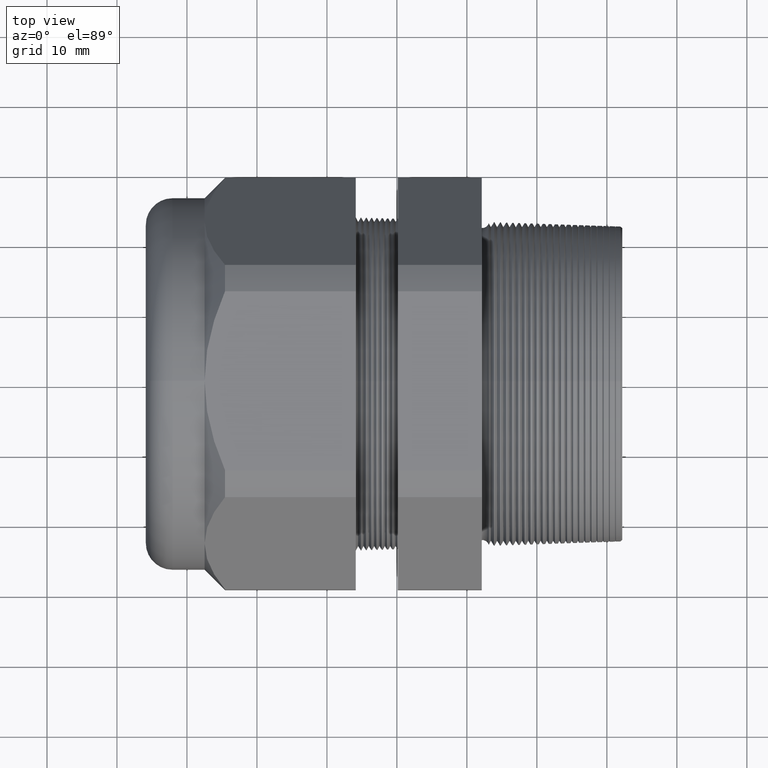
[diagram: clean part render]
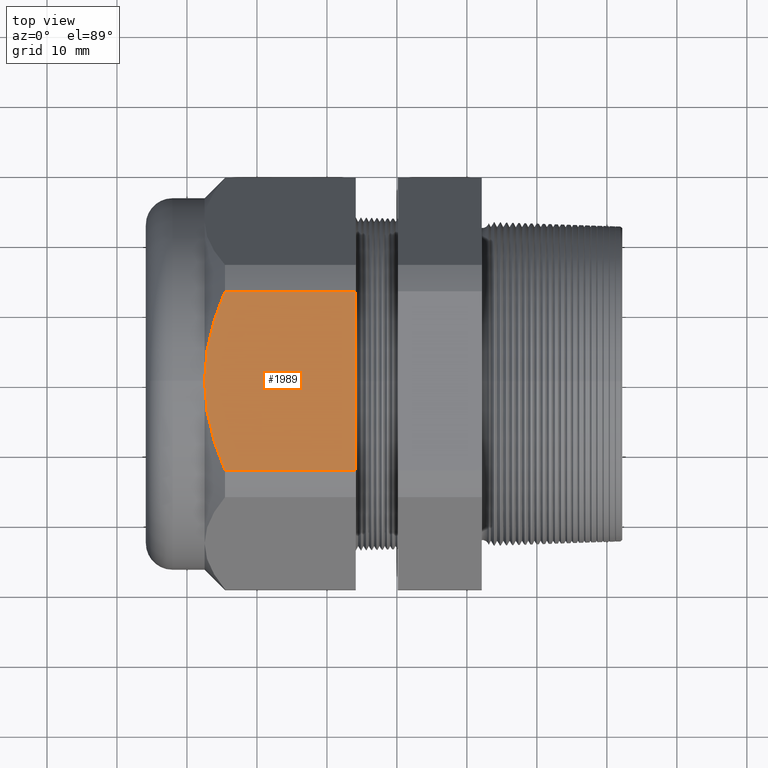
[diagram: same view with one face highlighted and labeled with its STEP entity id]
A machine part, top view. The second image highlights one B-rep face of the part: STEP entity #1989.
In plain terms, the highlighted planar face has unit normal (0, 0, 1).
Its self-contained STEP definition (entity closure, byte-faithful):
#1746 = EDGE_CURVE ( 'NONE', #1997, #1748, #4431, .T. ) ;
#1747 = ORIENTED_EDGE ( 'NONE', *, *, #1746, .F. ) ;
#1748 = VERTEX_POINT ( 'NONE', #4427 ) ;
#1749 = EDGE_CURVE ( 'NONE', #1748, #4296, #4426, .T. ) ;
#1754 = ORIENTED_EDGE ( 'NONE', *, *, #1749, .F. ) ;
#1889 = VERTEX_POINT ( 'NONE', #4662 ) ;
#1942 = EDGE_LOOP ( 'NONE', ( #1944, #1979, #4293, #1754, #1747 ) ) ;
#1944 = ORIENTED_EDGE ( 'NONE', *, *, #2000, .T. ) ;
#1979 = ORIENTED_EDGE ( 'NONE', *, *, #1982, .T. ) ;
#1982 = EDGE_CURVE ( 'NONE', #2001, #1889, #4851, .T. ) ;
#1989 = ADVANCED_FACE ( 'NONE', ( #4891 ), #4896, .T. ) ;
#1997 = VERTEX_POINT ( 'NONE', #4945 ) ;
#2000 = EDGE_CURVE ( 'NONE', #1997, #2001, #4944, .T. ) ;
#2001 = VERTEX_POINT ( 'NONE', #4940 ) ;
#4249 = EDGE_CURVE ( 'NONE', #1889, #4296, #4953, .T. ) ;
#4293 = ORIENTED_EDGE ( 'NONE', *, *, #4249, .T. ) ;
#4296 = VERTEX_POINT ( 'NONE', #5006 ) ;
#4423 = DIRECTION ( 'NONE',  ( -1.000000000000000000, 0.0000000000000000000, 0.0000000000000000000 ) ) ;
#4424 = VECTOR ( 'NONE', #4423, 39.37007874015748100 ) ;
#4425 = CARTESIAN_POINT ( 'NONE',  ( 0.4800000000000000900, -0.5034471198646390800, 1.044999999999999900 ) ) ;
#4426 = LINE ( 'NONE', #4425, #4424 ) ;
#4427 = CARTESIAN_POINT ( 'NONE',  ( -1.018802799999999800, -0.5034471198646390800, 1.044999999999999900 ) ) ;
#4428 = DIRECTION ( 'NONE',  ( 0.0000000000000000000, -1.000000000000000000, 0.0000000000000000000 ) ) ;
#4429 = VECTOR ( 'NONE', #4428, 39.37007874015748100 ) ;
#4430 = CARTESIAN_POINT ( 'NONE',  ( -1.018802799999999800, 0.9400000000000000600, 1.044999999999999900 ) ) ;
#4431 = LINE ( 'NONE', #4430, #4429 ) ;
#4662 = CARTESIAN_POINT ( 'NONE',  ( -1.869292000000000000, 0.0000000000000000000, 1.044999999999999900 ) ) ;
#4851 = B_SPLINE_CURVE_WITH_KNOTS ( 'NONE', 3,
 ( #4853, #4852, #4911, #4910, #4909, #4908, #4907, #4906, #4905, #4904, #4903, #4902, #4901, #4900 ),
 .UNSPECIFIED., .F., .F.,
 ( 4, 2, 2, 2, 2, 2, 4 ),
 ( 0.02039820435195582200, 0.02203190909537092200, 0.02366561383878601800, 0.02693302332561621100, 0.03020043281244640500, 0.03183413755586150100, 0.03346784229927659400 ),
 .UNSPECIFIED. ) ;
#4852 = CARTESIAN_POINT ( 'NONE',  ( -1.762942910033211200, 0.4836304892804658100, 1.044999999999999700 ) ) ;
#4853 = CARTESIAN_POINT ( 'NONE',  ( -1.754342000000000300, 0.5034471198646388600, 1.044999999999999900 ) ) ;
#4887 = DIRECTION ( 'NONE',  ( 1.000000000000000000, 0.0000000000000000000, 0.0000000000000000000 ) ) ;
#4888 = DIRECTION ( 'NONE',  ( 0.0000000000000000000, 0.0000000000000000000, 1.000000000000000000 ) ) ;
#4889 = CARTESIAN_POINT ( 'NONE',  ( 0.4800000000000000900, -0.5034471198646388600, 1.044999999999999900 ) ) ;
#4890 = AXIS2_PLACEMENT_3D ( 'NONE', #4889, #4888, #4887 ) ;
#4891 = FACE_OUTER_BOUND ( 'NONE', #1942, .T. ) ;
#4896 = PLANE ( 'NONE',  #4890 ) ;
#4900 = CARTESIAN_POINT ( 'NONE',  ( -1.869292000000000000, 0.0000000000000000000, 1.044999999999999900 ) ) ;
#4901 = CARTESIAN_POINT ( 'NONE',  ( -1.869292000000000400, 0.02182873446798830700, 1.044999999999999700 ) ) ;
#4902 = CARTESIAN_POINT ( 'NONE',  ( -1.868601348862169300, 0.04373691554683262900, 1.045000000000000200 ) ) ;
#4903 = CARTESIAN_POINT ( 'NONE',  ( -1.865889267300422800, 0.08713363206265284400, 1.044999999999999900 ) ) ;
#4904 = CARTESIAN_POINT ( 'NONE',  ( -1.863869075271275900, 0.1087024430698536000, 1.044999999999999900 ) ) ;
#4905 = CARTESIAN_POINT ( 'NONE',  ( -1.855917652805893800, 0.1730400535522952600, 1.045000000000000200 ) ) ;
#4906 = CARTESIAN_POINT ( 'NONE',  ( -1.848093749831173100, 0.2154396742832504500, 1.044999999999999900 ) ) ;
#4907 = CARTESIAN_POINT ( 'NONE',  ( -1.828018536546963200, 0.2993753196147929100, 1.044999999999999700 ) ) ;
#4908 = CARTESIAN_POINT ( 'NONE',  ( -1.815769846189894800, 0.3409118552550474100, 1.044999999999999700 ) ) ;
#4909 = CARTESIAN_POINT ( 'NONE',  ( -1.794564483841140500, 0.4026641939678179400, 1.045000000000000200 ) ) ;
#4910 = CARTESIAN_POINT ( 'NONE',  ( -1.787018621072151000, 0.4231631440832458500, 1.045000000000000200 ) ) ;
#4911 = CARTESIAN_POINT ( 'NONE',  ( -1.771216119577155400, 0.4636207977166989000, 1.044999999999999900 ) ) ;
#4940 = CARTESIAN_POINT ( 'NONE',  ( -1.754342000000000300, 0.5034471198646388600, 1.044999999999999900 ) ) ;
#4941 = DIRECTION ( 'NONE',  ( -1.000000000000000000, 0.0000000000000000000, 0.0000000000000000000 ) ) ;
#4942 = VECTOR ( 'NONE', #4941, 39.37007874015748100 ) ;
#4943 = CARTESIAN_POINT ( 'NONE',  ( 0.4800000000000000900, 0.5034471198646388600, 1.044999999999999900 ) ) ;
#4944 = LINE ( 'NONE', #4943, #4942 ) ;
#4945 = CARTESIAN_POINT ( 'NONE',  ( -1.018802799999999800, 0.5034471198646388600, 1.044999999999999900 ) ) ;
#4946 = CARTESIAN_POINT ( 'NONE',  ( -1.815810422140071700, -0.3407977905260944900, 1.044999999999999900 ) ) ;
#4947 = CARTESIAN_POINT ( 'NONE',  ( -1.828087416907578000, -0.2991342696643446400, 1.044999999999999700 ) ) ;
#4948 = CARTESIAN_POINT ( 'NONE',  ( -1.858213035920962100, -0.1730359448115064100, 1.044999999999999900 ) ) ;
#4949 = CARTESIAN_POINT ( 'NONE',  ( -1.869292000000000400, -0.08745202795108905600, 1.045000000000000200 ) ) ;
#4950 = CARTESIAN_POINT ( 'NONE',  ( -1.869292000000000000, 0.0000000000000000000, 1.044999999999999900 ) ) ;
#4953 = B_SPLINE_CURVE_WITH_KNOTS ( 'NONE', 3,
 ( #4950, #4949, #4948, #4947, #4946, #5009, #5008, #5007 ),
 .UNSPECIFIED., .F., .F.,
 ( 4, 2, 2, 4 ),
 ( 0.03346784229927659400, 0.04001292135983693800, 0.04328546089011711700, 0.04655800042039728900 ),
 .UNSPECIFIED. ) ;
#5006 = CARTESIAN_POINT ( 'NONE',  ( -1.754342000000000300, -0.5034471198646390800, 1.044999999999999900 ) ) ;
#5007 = CARTESIAN_POINT ( 'NONE',  ( -1.754342000000000300, -0.5034471198646390800, 1.044999999999999900 ) ) ;
#5008 = CARTESIAN_POINT ( 'NONE',  ( -1.771541667379295600, -0.4638188185209407000, 1.044999999999999700 ) ) ;
#5009 = CARTESIAN_POINT ( 'NONE',  ( -1.787425944234740700, -0.4234483023531731000, 1.044999999999999900 ) ) ;